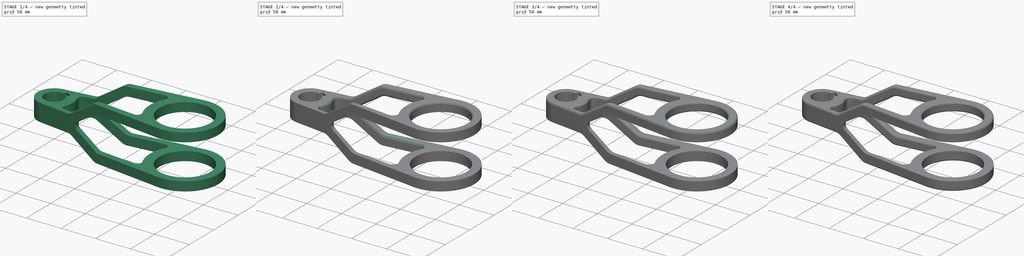
[diagram: build sequence overview — one tinted view per stage of 4, left to right]
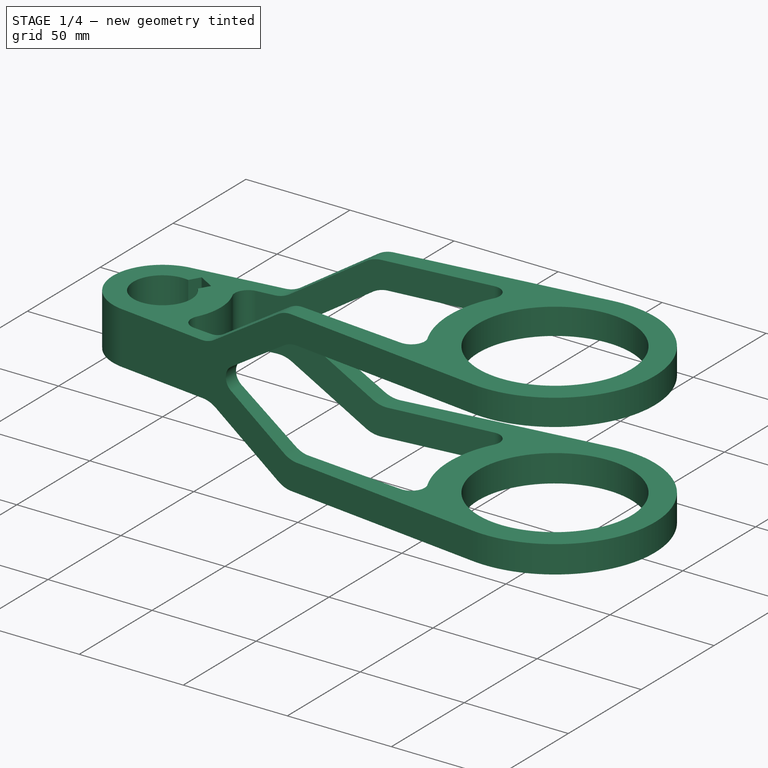
[diagram: stage 1 of 4 — iso view after this stage's code; geometry added in this stage tinted green]
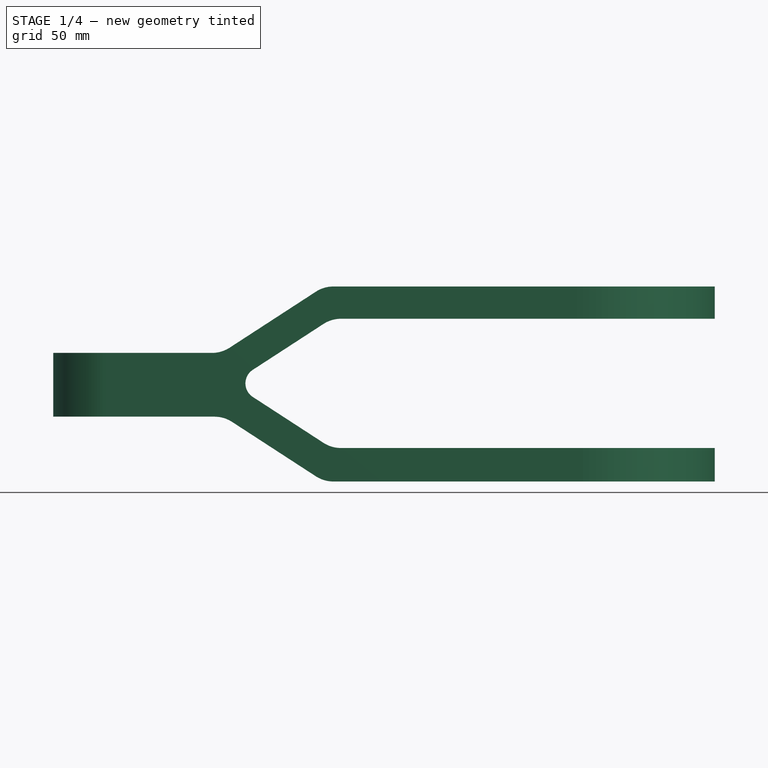
[diagram: stage 1 of 4 — front view after this stage's code; geometry added in this stage tinted green]
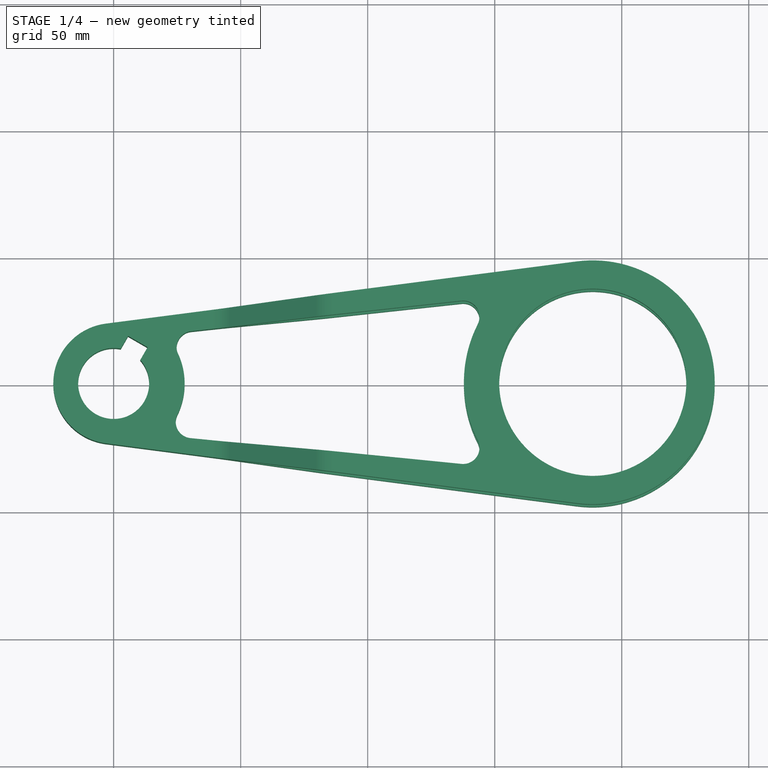
[diagram: stage 1 of 4 — top view after this stage's code; geometry added in this stage tinted green]
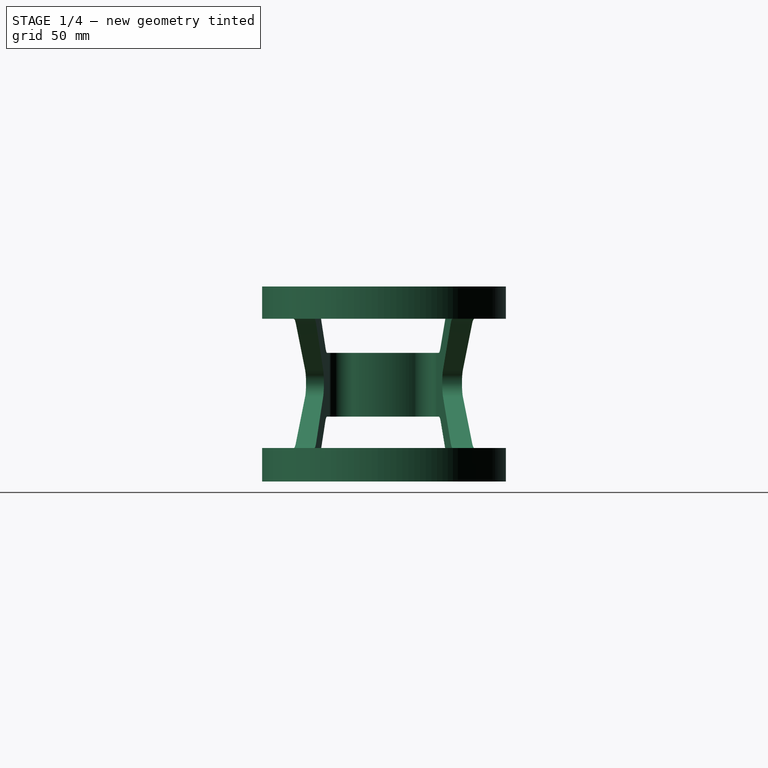
[diagram: stage 1 of 4 — right view after this stage's code; geometry added in this stage tinted green]
FCSTD DOCUMENT  (FreeCAD 0.19R24267 +148 (Git))
Label: Ex10
License: All rights reserved
LicenseURL: http://en.wikipedia.org/wiki/All_rights_reserved
objects: PartDesign::Fillet×8, Sketcher::SketchObject×2, PartDesign::Pad×2, PartDesign::Body×2, PartDesign::Boolean×1
note: 25 computed .brp shape members not serialized (recipe doc carries the construction recipe); baked Part::Feature solids carry a one-line shape summary decoded from their .brp

FEATURE [Sketcher::SketchObject] Sketch
  FullyConstrained = false
  MapMode = 5
  Support = -> [XY_Plane]
  sketch-geometry (19):
    g0: ArcOfCircle CenterX=0 CenterY=0 CenterZ=0 NormalX=0 NormalY=0 NormalZ=1 AngleXU=0 Radius=13.97 StartAngle=1.37101 EndAngle=7.00657
    g1: LineSegment StartX=2.7725 StartY=13.6921 StartZ=0 EndX=5.67361 EndY=18.717 EndZ=0
    g2: LineSegment StartX=5.67361 StartY=18.717 StartZ=0 EndX=13.3726 EndY=14.272 EndZ=0
    g3: LineSegment StartX=13.3726 StartY=14.272 StartZ=0 EndX=10.4715 EndY=9.24712 EndZ=0
    g4: ArcOfCircle CenterX=0 CenterY=0 CenterZ=0 NormalX=0 NormalY=0 NormalZ=1 AngleXU=0 Radius=23.7572 StartAngle=1.69973 EndAngle=4.58345
    g5: LineSegment StartX=-3.05467 StartY=23.56 StartZ=0 EndX=182.414 EndY=47.6075 EndZ=0
    g6: LineSegment StartX=-3.05467 StartY=-23.56 StartZ=0 EndX=182.414 EndY=-47.6075 EndZ=0
    g7: ArcOfCircle CenterX=188.587 CenterY=-1.62783e-09 CenterZ=0 NormalX=0 NormalY=0 NormalZ=1 AngleXU=0 Radius=48.006 StartAngle=4.58345 EndAngle=7.98292
    g8: GeomPoint X=-23.7572 Y=-0.000528687 Z=0
    g9: GeomPoint X=236.593 Y=0.000193285 Z=0
    g10: Circle CenterX=188.587 CenterY=-1.62783e-09 CenterZ=0 NormalX=0 NormalY=0 NormalZ=1 AngleXU=0 Radius=36.83
    g11: ArcOfCircle CenterX=0 CenterY=0 CenterZ=0 NormalX=0 NormalY=0 NormalZ=1 AngleXU=0 Radius=27.9454 StartAngle=5.82753 EndAngle=6.73884
    g12: ArcOfCircle CenterX=188.587 CenterY=-1.62783e-09 CenterZ=0 NormalX=0 NormalY=0 NormalZ=1 AngleXU=0 Radius=50.7219 StartAngle=2.67429 EndAngle=3.6089
    g13: ArcOfCircle CenterX=31.2095 CenterY=14.2318 CenterZ=0 NormalX=0 NormalY=0 NormalZ=1 AngleXU=0 Radius=6.41391 StartAngle=1.67856 EndAngle=3.44794
    g14: ArcOfCircle CenterX=30.8537 CenterY=-15.12 CenterZ=0 NormalX=0 NormalY=0 NormalZ=1 AngleXU=0 Radius=6.41391 StartAngle=2.68593 EndAngle=4.61322
    g15: ArcOfCircle CenterX=137.577 CenterY=25.7387 CenterZ=0 NormalX=0 NormalY=0 NormalZ=1 AngleXU=0 Radius=6.41391 StartAngle=5.81588 EndAngle=7.96174
    g16: ArcOfCircle CenterX=137.577 CenterY=-25.7387 CenterZ=0 NormalX=0 NormalY=0 NormalZ=1 AngleXU=0 Radius=6.41391 StartAngle=4.61322 EndAngle=6.75049
    g17: LineSegment StartX=30.5196 StartY=20.6085 StartZ=0 EndX=136.887 EndY=32.1154 EndZ=0
    g18: LineSegment StartX=30.2187 StartY=-21.5024 StartZ=0 EndX=136.942 EndY=-32.1211 EndZ=0
  constraints (45):
    c: Coincident(g0,g-1)
    c: Radius(g0) = 13.97
    c: Coincident(g1,g0)
    c: Coincident(g2,g1)
    c: Coincident(g3,g2)
    c: Coincident(g3,g0)
    c: Parallel(g1,g3)
    c: Perpendicular(g3,g2)
    c: Equal(g1,g3)
    c: Distance(g2) = 8.89
    c: Distance(g0,g1) = 19.558
    c: Angle(g3,g-1) = 2.0944
    c: Coincident(g4,g0)
    c: Coincident(g5,g4)
    c: Coincident(g6,g4)
    c: Tangent(g4,g5)
    c: Tangent(g4,g6)
    c: Vertical(g5,g6)
    c: Coincident(g7,g5)
    c: Equal(g5,g6)
    c: Tangent(g7,g6) = -1.5708
    c: Radius(g7) = 48.006
    c: PointOnObject(g8,g4)
    c: PointOnObject(g9,g7)
    c: Coincident(g10,g7)
    c: Radius(g10) = 36.83
    c: Coincident(g11,g0)
    c: Coincident(g12,g7)
    c: Coincident(g13,g11)
    c: Tangent(g14,g11) = 1.5708
    c: Equal(g15,g16)
    c: Equal(g13,g14)
    c: Equal(g16,g14)
    c: Coincident(g17,g15)
    c: Coincident(g18,g14)
    c: Coincident(g18,g16)
    c: Tangent(g18,g14)
    c: Tangent(g16,g18)
    c: Tangent(g15,g17)
    c: Vertical(g11,g11)
    c: Tangent(g17,g13) = 1.5708
    c: Tangent(g15,g12) = 1.5708
    c: Tangent(g16,g12) = 1.5708
    c: Vertical(g16,g15)
    c: DistanceX(g8,g9) = 260.35
FEATURE [Sketcher::SketchObject] Sketch001
  FullyConstrained = false
  MapMode = 5
  Placement = pos=(0,0,0) rot=(1,0,0;1.5708rad)
  Support = -> [XZ_Plane001]
  sketch-geometry (29):
    g0: LineSegment StartX=38.7315 StartY=10.5875 StartZ=0 EndX=-28.8937 EndY=10.5875 EndZ=0
    g1: LineSegment StartX=-31.8066 StartY=7.67458 StartZ=0 EndX=-31.8066 EndY=-11.429 EndZ=0
    g2: LineSegment StartX=-28.721 StartY=-14.5146 StartZ=0 EndX=39.6997 EndY=-14.5146 EndZ=0
    g3: LineSegment StartX=46.6166 StartY=-16.5635 StartZ=0 EndX=79.5971 EndY=-37.9813 EndZ=0
    g4: LineSegment StartX=86.514 StartY=-40.0302 StartZ=0 EndX=246.674 EndY=-40.0302 EndZ=0
    g5: LineSegment StartX=247.732 StartY=-38.972 StartZ=0 EndX=247.732 EndY=-29.8001 EndZ=0
    g6: LineSegment StartX=244.779 StartY=-26.8471 StartZ=0 EndX=89.494 EndY=-26.8471 EndZ=0
    g7: LineSegment StartX=82.5771 StartY=-24.7983 StartZ=0 EndX=54.7594 EndY=-6.73325 EndZ=0
    g8: LineSegment StartX=54.7594 StartY=3.91786 StartZ=0 EndX=82.5771 EndY=21.9829 EndZ=0
    g9: LineSegment StartX=89.494 StartY=24.0318 StartZ=0 EndX=247.448 EndY=24.0318 EndZ=0
    g10: LineSegment StartX=247.87 StartY=24.4535 StartZ=0 EndX=247.87 EndY=31.7133 EndZ=0
    g11: LineSegment StartX=242.851 StartY=36.7318 StartZ=0 EndX=86.514 EndY=36.7318 EndZ=0
    g12: LineSegment StartX=79.5971 StartY=34.6829 StartZ=0 EndX=45.6484 EndY=12.6364 EndZ=0
    g13: ArcOfCircle CenterX=39.6997 CenterY=-27.2146 CenterZ=0 NormalX=0 NormalY=0 NormalZ=1 AngleXU=0 Radius=12.7 StartAngle=0.994838 EndAngle=1.5708
    g14: ArcOfCircle CenterX=38.7315 CenterY=23.2875 CenterZ=0 NormalX=0 NormalY=0 NormalZ=1 AngleXU=0 Radius=12.7 StartAngle=4.71239 EndAngle=5.28835
    g15: LineSegment StartX=70.4299 StartY=28.7296 StartZ=0 EndX=74.3798 EndY=16.6595 EndZ=0
    g16: ArcOfCircle CenterX=89.494 CenterY=-14.1471 CenterZ=0 NormalX=0 NormalY=0 NormalZ=1 AngleXU=0 Radius=12.7 StartAngle=4.13643 EndAngle=4.71239
    g17: ArcOfCircle CenterX=86.514 CenterY=-27.3302 CenterZ=0 NormalX=0 NormalY=0 NormalZ=1 AngleXU=0 Radius=12.7 StartAngle=4.13643 EndAngle=4.71239
    g18: ArcOfCircle CenterX=86.514 CenterY=24.0318 CenterZ=0 NormalX=0 NormalY=0 NormalZ=1 AngleXU=0 Radius=12.7 StartAngle=1.5708 EndAngle=2.14675
    g19: ArcOfCircle CenterX=89.494 CenterY=11.3318 CenterZ=0 NormalX=0 NormalY=0 NormalZ=1 AngleXU=0 Radius=12.7 StartAngle=1.5708 EndAngle=2.14675
    g20: ArcOfCircle CenterX=58.2179 CenterY=-1.4077 CenterZ=0 NormalX=0 NormalY=0 NormalZ=1 AngleXU=0 Radius=6.35 StartAngle=2.14675 EndAngle=4.13643
    g21: LineSegment StartX=70.9603 StartY=-17.2542 StartZ=0 EndX=64.6631 EndY=-28.2831 EndZ=0
    g22: ArcOfCircle CenterX=242.851 CenterY=31.7133 CenterZ=0 NormalX=0 NormalY=0 NormalZ=1 AngleXU=0 Radius=5.01843 StartAngle=3e-16 EndAngle=1.5708
    g23: ArcOfCircle CenterX=247.448 CenterY=24.4535 CenterZ=0 NormalX=0 NormalY=0 NormalZ=1 AngleXU=0 Radius=0.421782 StartAngle=4.71239 EndAngle=6.28319
    g24: ArcOfCircle CenterX=244.779 CenterY=-29.8001 CenterZ=0 NormalX=0 NormalY=0 NormalZ=1 AngleXU=0 Radius=2.95298 StartAngle=0 EndAngle=1.5708
    g25: ArcOfCircle CenterX=246.674 CenterY=-38.972 CenterZ=0 NormalX=0 NormalY=0 NormalZ=1 AngleXU=0 Radius=1.05819 StartAngle=4.71239 EndAngle=6.28319
    g26: ArcOfCircle CenterX=-28.8937 CenterY=7.67458 CenterZ=0 NormalX=0 NormalY=0 NormalZ=1 AngleXU=0 Radius=2.91289 StartAngle=1.5708 EndAngle=3.14159
    g27: ArcOfCircle CenterX=-28.721 CenterY=-11.429 CenterZ=0 NormalX=0 NormalY=0 NormalZ=1 AngleXU=0 Radius=3.08558 StartAngle=3.14159 EndAngle=4.71239
    g28: LineSegment StartX=179.8 StartY=36.7318 StartZ=0 EndX=179.8 EndY=24.0318 EndZ=0
  constraints (58):
    c: Horizontal(g0)
    c: Vertical(g1)
    c: Horizontal(g2)
    c: Horizontal(g4)
    c: Vertical(g5)
    c: Horizontal(g6)
    c: Horizontal(g9)
    c: Vertical(g10)
    c: Horizontal(g11)
    c: Parallel(g12,g8)
    c: Parallel(g7,g3)
    c: Angle(g2,g3) = 2.56563
    c: Angle(g12,g0) = 2.56563
    c: Tangent(g2,g13) = 1.5708
    c: Tangent(g3,g13) = 1.5708
    c: Radius(g13) = 12.7
    c: Tangent(g0,g14) = 1.5708
    c: Tangent(g12,g14) = 1.5708
    c: Radius(g14) = 12.7
    c: PointOnObject(g15,g12)
    c: PointOnObject(g15,g8)
    c: Distance(g15) = 12.7
    c: Tangent(g6,g16) = 1.5708
    c: Tangent(g7,g16) = 1.5708
    c: Tangent(g3,g17) = -1.5708
    c: Tangent(g4,g17) = -1.5708
    c: Tangent(g11,g18) = -1.5708
    c: Tangent(g12,g18) = -1.5708
    c: Tangent(g8,g19) = 1.5708
    c: Tangent(g9,g19) = 1.5708
    c: Vertical(g9,g6)
    c: Vertical(g8,g7)
    c: Vertical(g11,g4)
    c: Vertical(g12,g3)
    c: Tangent(g8,g20) = 1.5708
    c: Tangent(g7,g20) = 1.5708
    c: Diameter(g20) = 12.7
    c: Equal(g14,g18)
    c: Equal(g18,g19)
    c: PointOnObject(g21,g7)
    c: PointOnObject(g21,g3)
    c: Distance(g21) = 12.7
    c: Tangent(g10,g22) = -1.5708
    c: Tangent(g11,g22) = -1.5708
    c: Tangent(g9,g23) = -1.5708
    c: Tangent(g10,g23) = -1.5708
    c: Tangent(g5,g24) = -1.5708
    c: Tangent(g6,g24) = -1.5708
    c: Tangent(g4,g25) = -1.5708
    c: Tangent(g5,g25) = -1.5708
    c: Tangent(g0,g26) = -1.5708
    c: Tangent(g1,g26) = -1.5708
    c: Tangent(g1,g27) = -1.5708
    c: Tangent(g2,g27) = -1.5708
    c: PointOnObject(g28,g11)
    c: PointOnObject(g28,g9)
    c: Vertical(g28)
    c: Distance(g28) = 12.7
FEATURE [PartDesign::Pad] Pad
  Direction = (1,1,1)
  Length = 114.3
  Length2 = 100.076
  Midplane = true
  Profile = -> Sketch
  Type = 0
FEATURE [PartDesign::Body] Body
  Group = -> [Sketch,Pad]
  Origin = -> Origin
  Tip = -> Pad
FEATURE [PartDesign::Pad] Pad001
  Direction = (1,1,1)
  Length = 127
  Length2 = 100.076
  Midplane = true
  Placement = pos=(0,0,0) rot=(1,0,0;1.5708rad)
  Profile = -> Sketch001
  Type = 0
FEATURE [PartDesign::Boolean] Boolean
  BaseFeature = -> Pad001
  Group = -> [Body]
  Type = 2
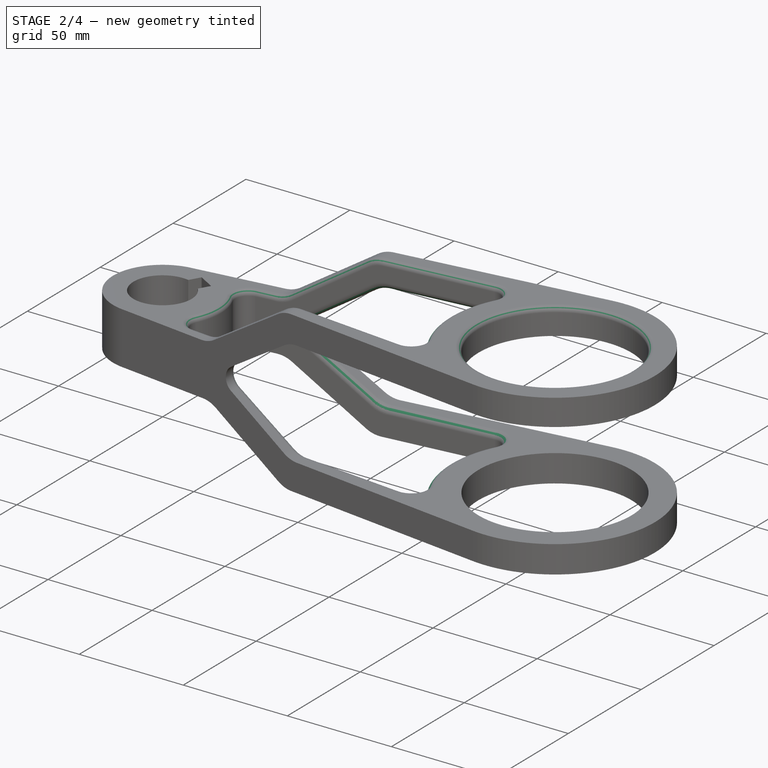
[diagram: stage 2 of 4 — iso view after this stage's code; geometry added in this stage tinted green]
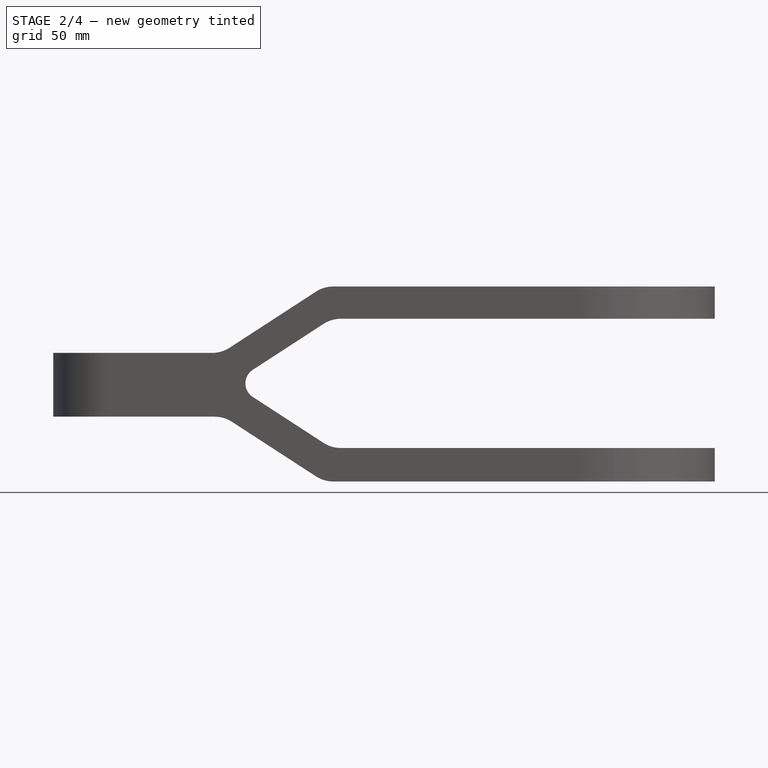
[diagram: stage 2 of 4 — front view after this stage's code; geometry added in this stage tinted green]
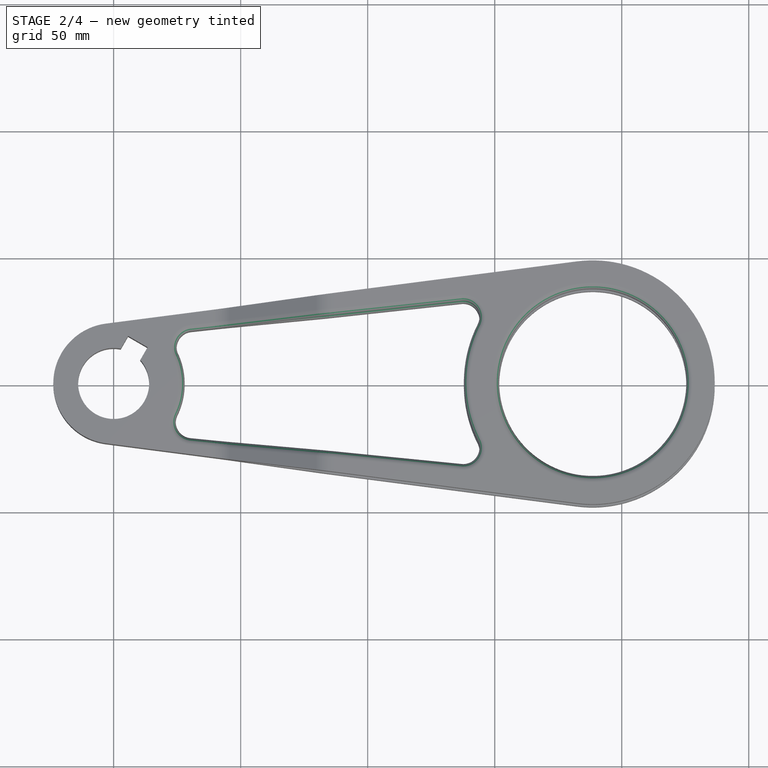
[diagram: stage 2 of 4 — top view after this stage's code; geometry added in this stage tinted green]
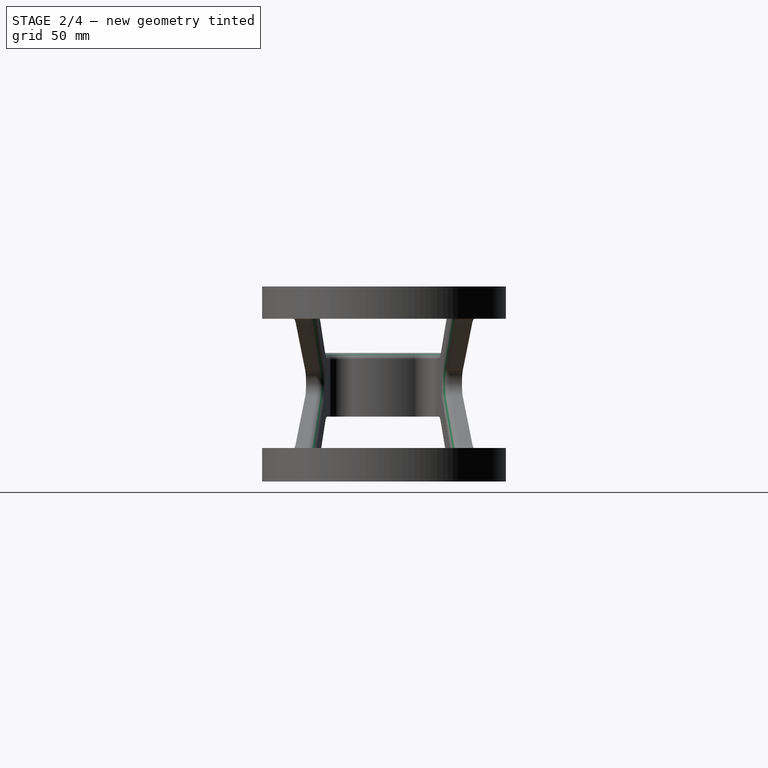
[diagram: stage 2 of 4 — right view after this stage's code; geometry added in this stage tinted green]
FEATURE [PartDesign::Fillet] Fillet
  Base = -> Boolean [Edge85]
  BaseFeature = -> Boolean
  Radius = 3.175
  SupportTransform = false
FEATURE [PartDesign::Fillet] Fillet001
  Base = -> Fillet [Edge126]
  BaseFeature = -> Fillet
  Radius = 2.54
  SupportTransform = false
FEATURE [PartDesign::Fillet] Fillet002
  Base = -> Fillet001 [Edge164]
  BaseFeature = -> Fillet001
  Radius = 2.54
  SupportTransform = false
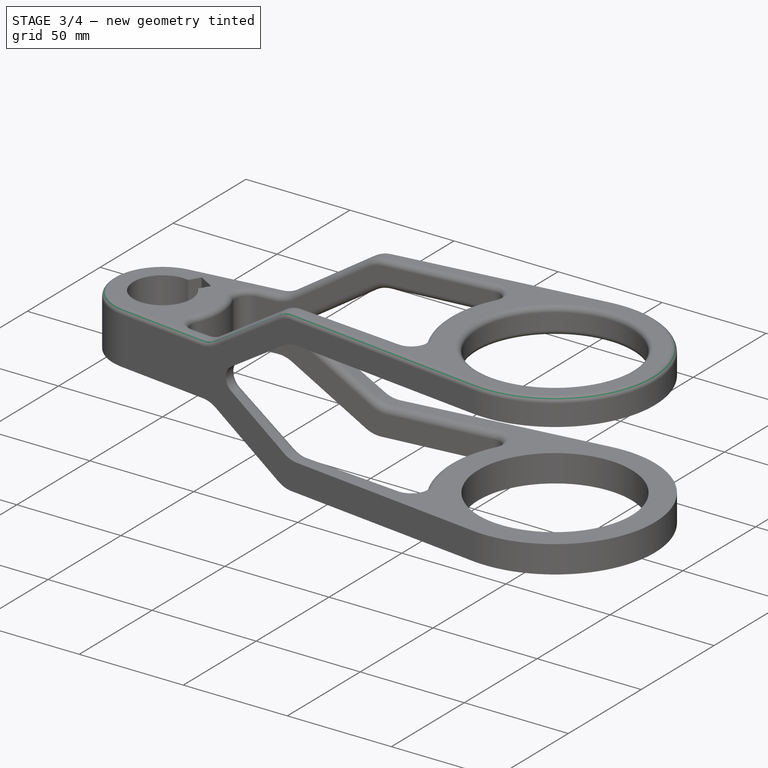
[diagram: stage 3 of 4 — iso view after this stage's code; geometry added in this stage tinted green]
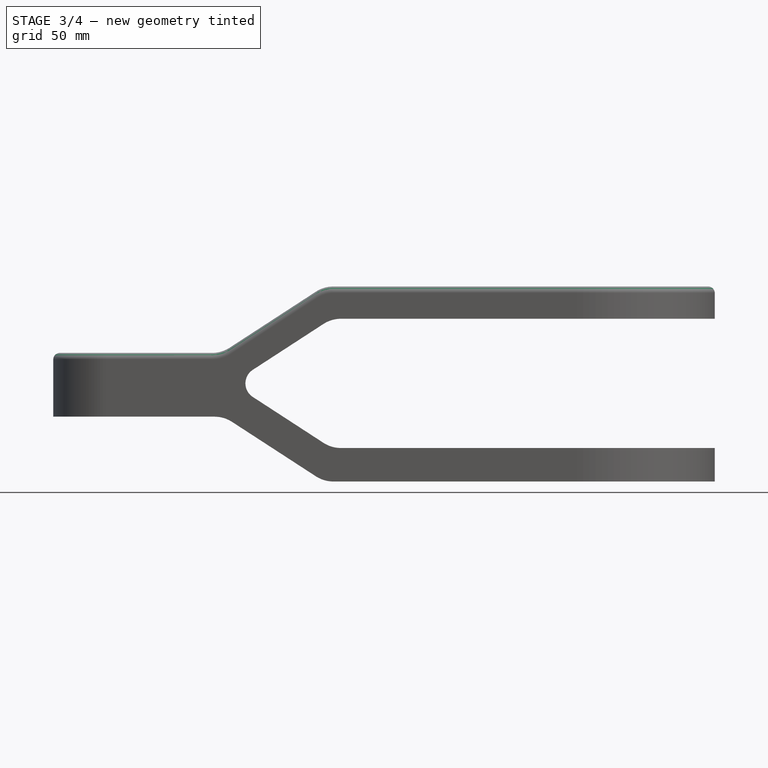
[diagram: stage 3 of 4 — front view after this stage's code; geometry added in this stage tinted green]
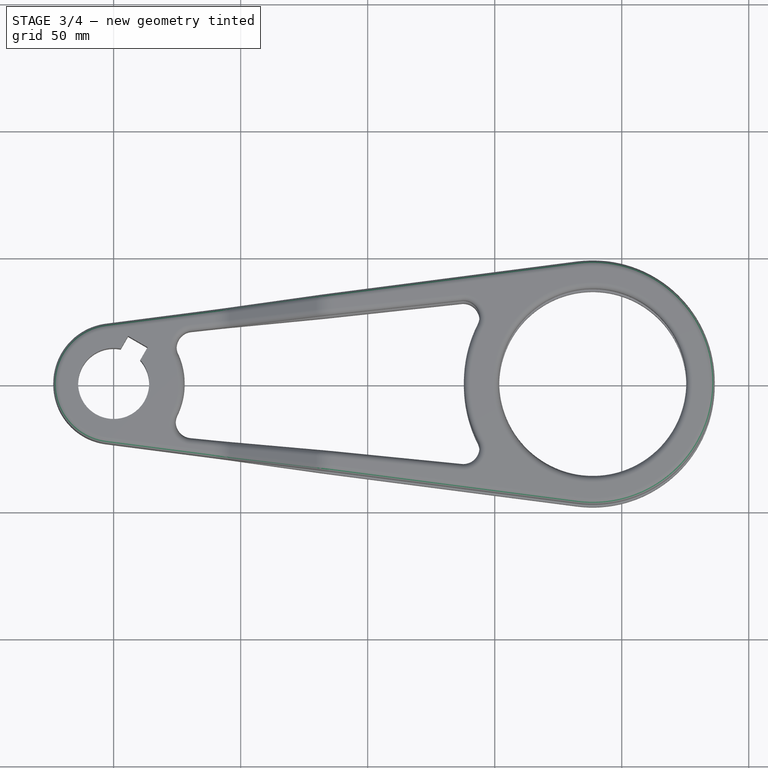
[diagram: stage 3 of 4 — top view after this stage's code; geometry added in this stage tinted green]
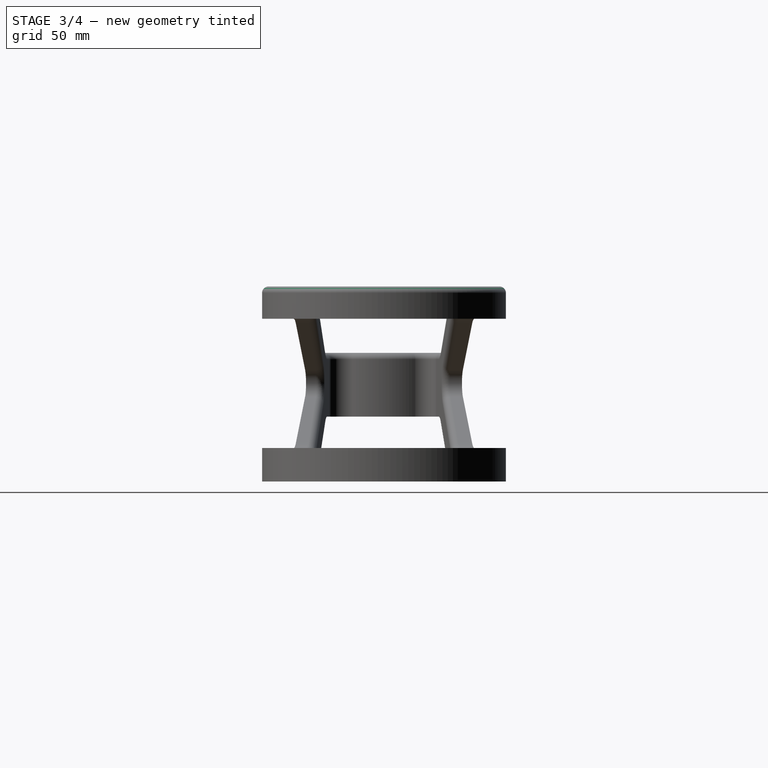
[diagram: stage 3 of 4 — right view after this stage's code; geometry added in this stage tinted green]
FEATURE [PartDesign::Fillet] Fillet003
  Base = -> Fillet002 [Edge69]
  BaseFeature = -> Fillet002
  Radius = 2.54
  SupportTransform = false
FEATURE [PartDesign::Fillet] Fillet004
  Base = -> Fillet003 [Edge20]
  BaseFeature = -> Fillet003
  Radius = 2.54
  SupportTransform = false
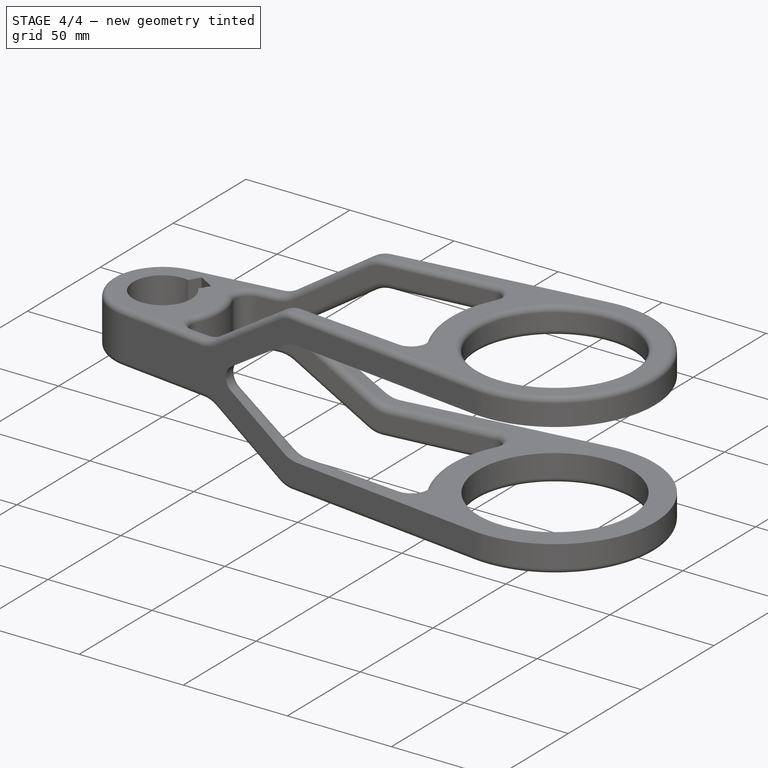
[diagram: stage 4 of 4 — iso view after this stage's code; geometry added in this stage tinted green]
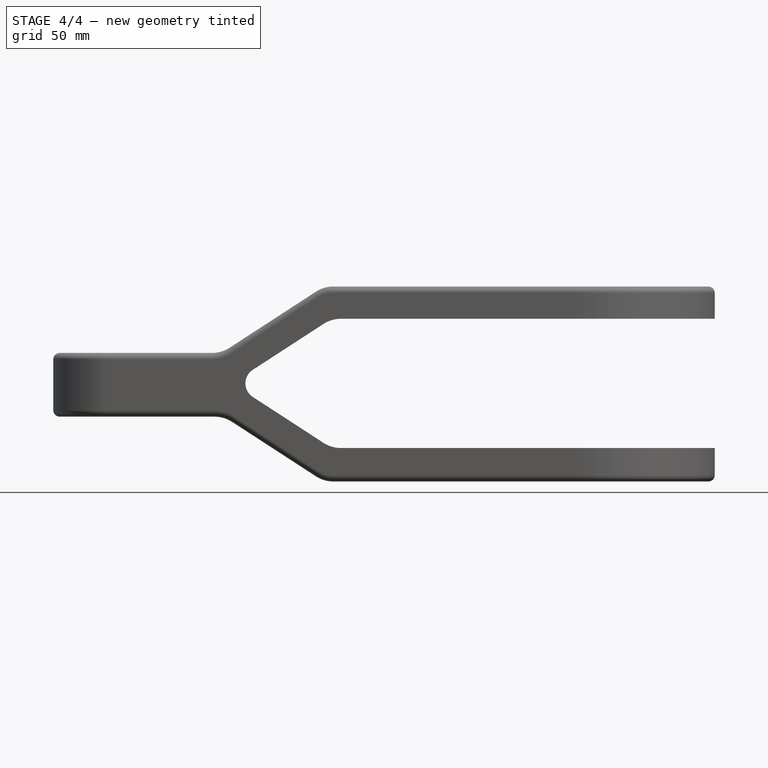
[diagram: stage 4 of 4 — front view after this stage's code; geometry added in this stage tinted green]
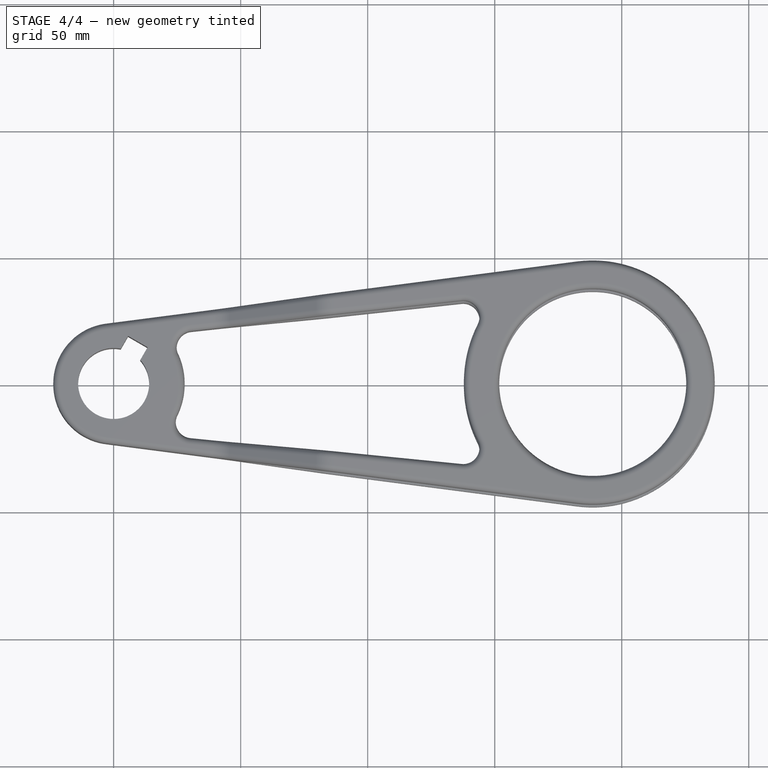
[diagram: stage 4 of 4 — top view after this stage's code; geometry added in this stage tinted green]
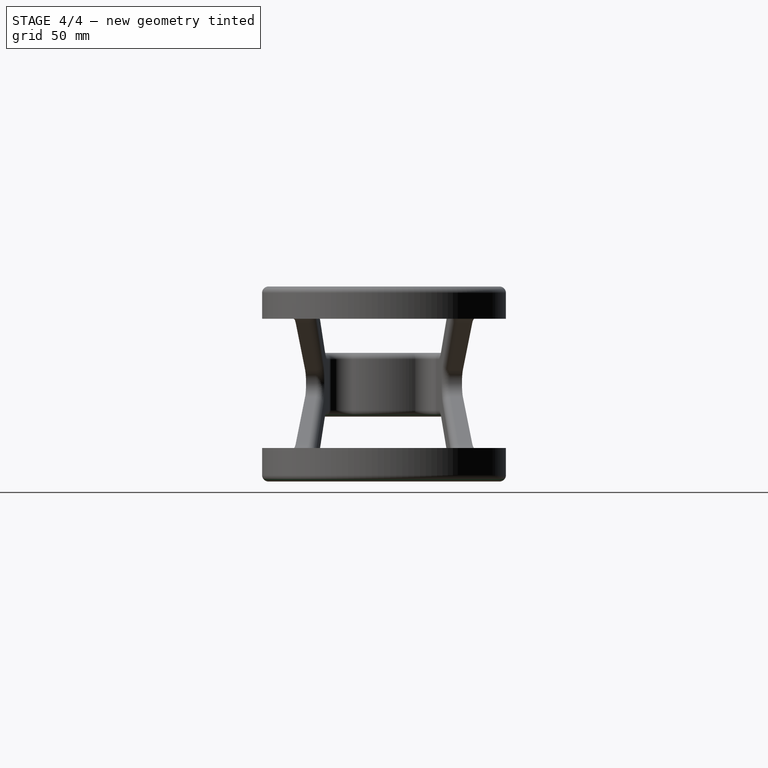
[diagram: stage 4 of 4 — right view after this stage's code; geometry added in this stage tinted green]
FEATURE [PartDesign::Fillet] Fillet005
  Base = -> Fillet004 [Edge101]
  BaseFeature = -> Fillet004
  Radius = 2.54
  SupportTransform = false
FEATURE [PartDesign::Fillet] Fillet006
  Base = -> Fillet005 [Edge102]
  BaseFeature = -> Fillet005
  Radius = 2.54
  SupportTransform = false
FEATURE [PartDesign::Fillet] Fillet007
  Base = -> Fillet006 [Face105]
  BaseFeature = -> Fillet006
  Radius = 2.54
  SupportTransform = false
FEATURE [PartDesign::Body] Body001
  Group = -> [Sketch001,Pad001,Boolean,Fillet,Fillet001,Fillet002,Fillet003,Fillet004,Fillet005,Fillet006,Fillet007]
  Origin = -> Origin001
  Tip = -> Fillet007
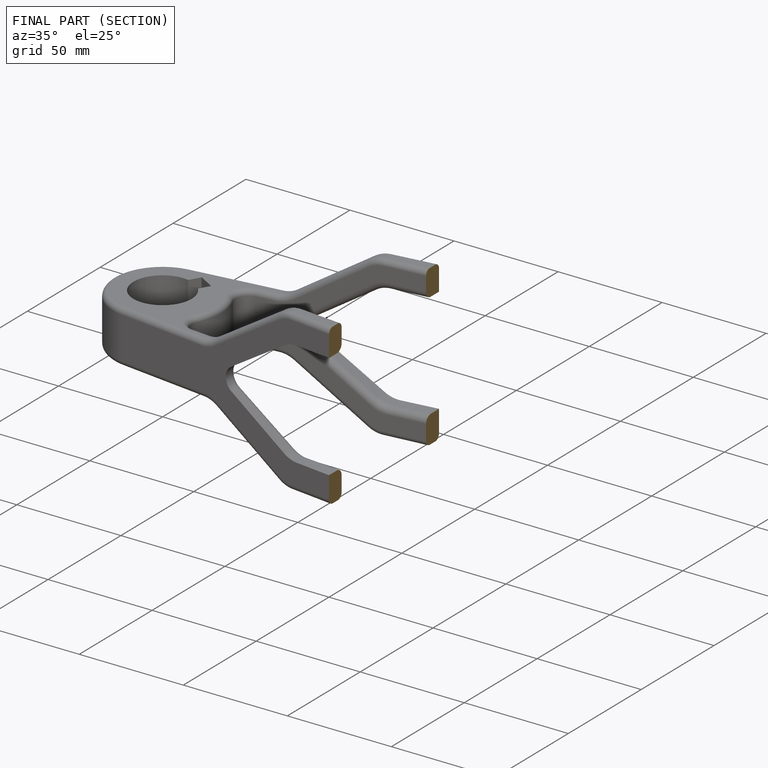
[diagram: finished part — half-section view (interior)]
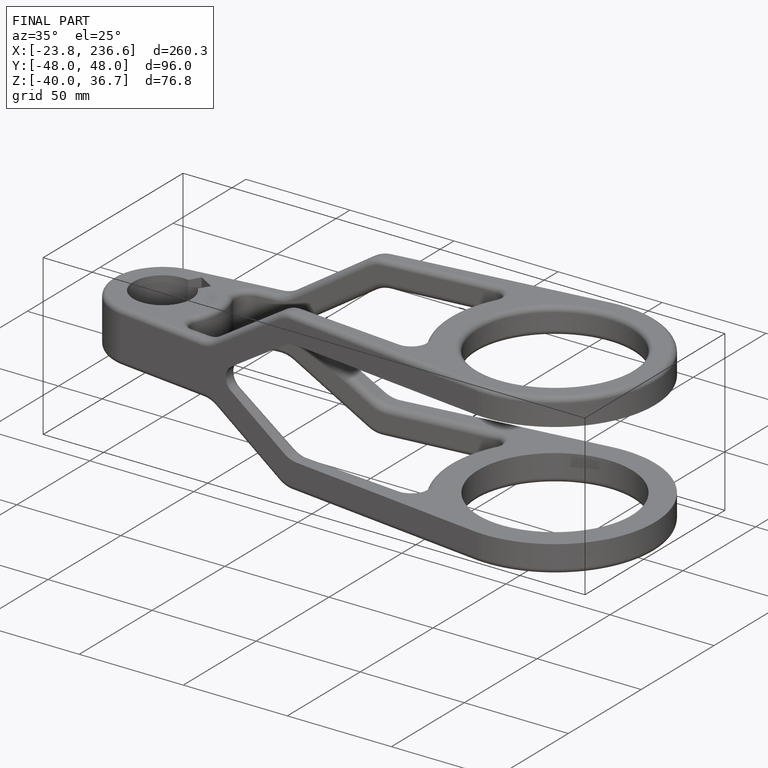
[diagram: finished part — iso view with bounding-box wireframe]
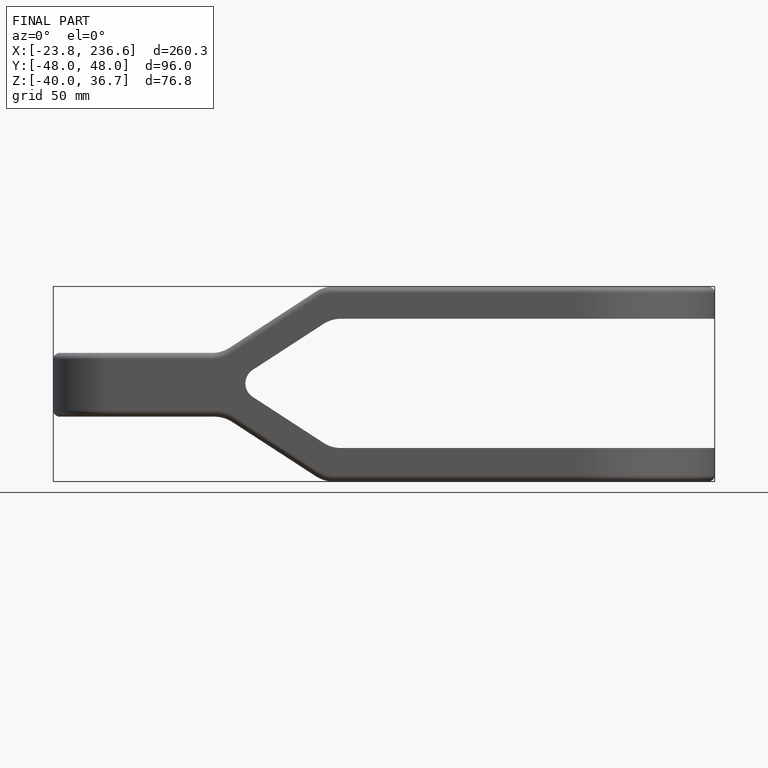
[diagram: finished part — front view with bounding-box wireframe]
